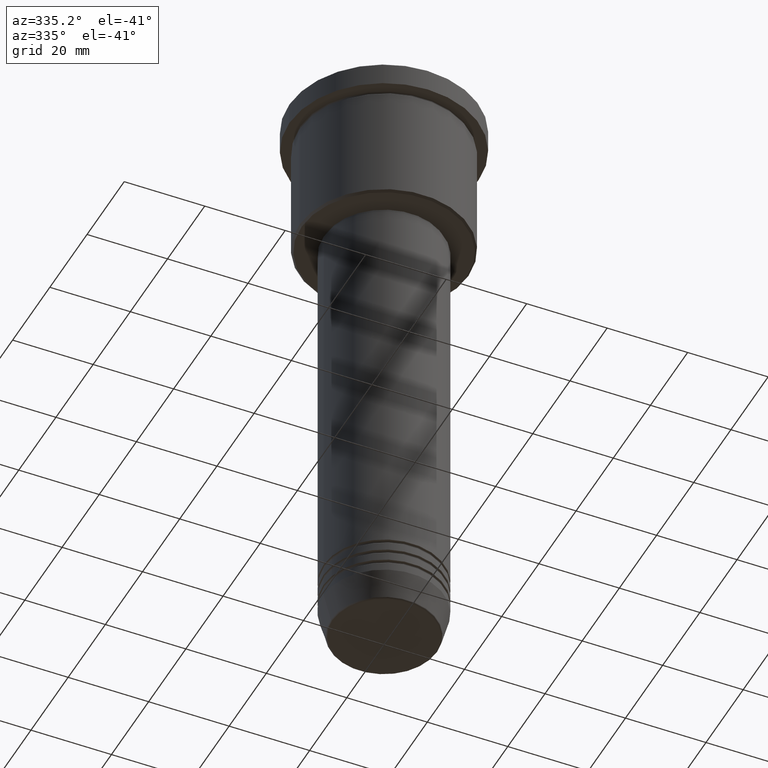
[diagram: clean part render]
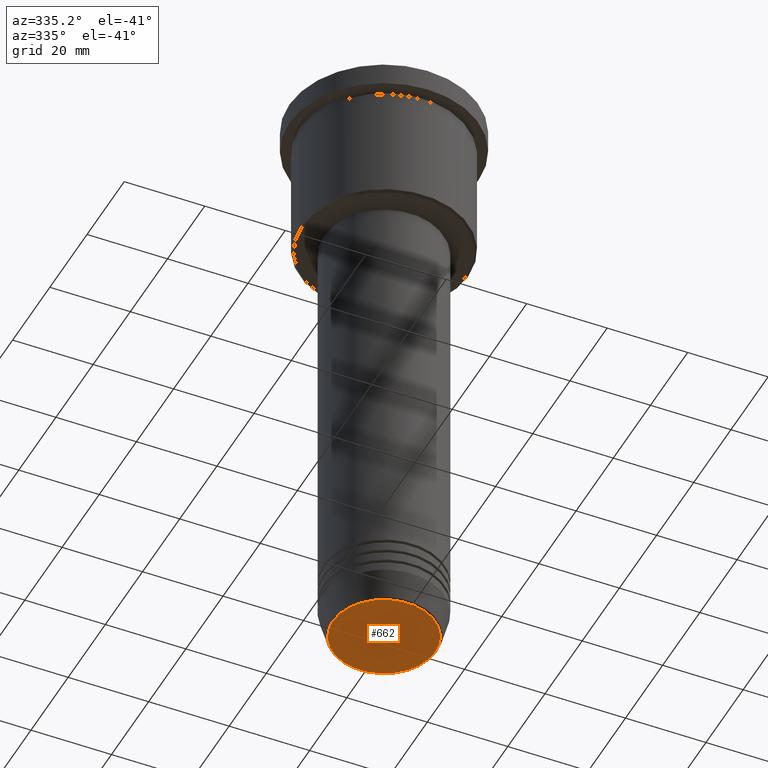
[diagram: same view with one face highlighted and labeled with its STEP entity id]
A machine part, auxiliary view. The second image highlights one B-rep face of the part: STEP entity #662.
In plain terms, the highlighted planar face has unit normal (0, -0, 1).
Its self-contained STEP definition (entity closure, byte-faithful):
#9 = VERTEX_POINT ( 'NONE', #358 ) ;
#106 = CARTESIAN_POINT ( 'NONE',  ( 0.000000000000000000, 0.000000000000000000, -151.0000000000000284 ) ) ;
#233 = EDGE_LOOP ( 'NONE', ( #891, #1128 ) ) ;
#246 = CIRCLE ( 'NONE', #523, 12.74069215899265828 ) ;
#274 = DIRECTION ( 'NONE',  ( 1.000000000000000000, 0.000000000000000000, 0.000000000000000000 ) ) ;
#320 = PLANE ( 'NONE',  #581 ) ;
#358 = CARTESIAN_POINT ( 'NONE',  ( -12.74069215899265828, 1.589857736427681035E-15, -151.0000000000000284 ) ) ;
#433 = CARTESIAN_POINT ( 'NONE',  ( 0.000000000000000000, 0.000000000000000000, -151.0000000000000284 ) ) ;
#436 = DIRECTION ( 'NONE',  ( 0.000000000000000000, -0.000000000000000000, 1.000000000000000000 ) ) ;
#468 = DIRECTION ( 'NONE',  ( 0.000000000000000000, 0.000000000000000000, -1.000000000000000000 ) ) ;
#523 = AXIS2_PLACEMENT_3D ( 'NONE', #106, #468, #274 ) ;
#543 = CIRCLE ( 'NONE', #1181, 12.74069215899265828 ) ;
#553 = CARTESIAN_POINT ( 'NONE',  ( 12.74069215899265828, 0.000000000000000000, -151.0000000000000284 ) ) ;
#571 = EDGE_CURVE ( 'NONE', #887, #9, #543, .T. ) ;
#581 = AXIS2_PLACEMENT_3D ( 'NONE', #433, #436, #981 ) ;
#662 = ADVANCED_FACE ( 'NONE', ( #978 ), #320, .F. ) ;
#681 = DIRECTION ( 'NONE',  ( 1.000000000000000000, 0.000000000000000000, 0.000000000000000000 ) ) ;
#804 = EDGE_CURVE ( 'NONE', #9, #887, #246, .T. ) ;
#887 = VERTEX_POINT ( 'NONE', #553 ) ;
#891 = ORIENTED_EDGE ( 'NONE', *, *, #571, .T. ) ;
#955 = DIRECTION ( 'NONE',  ( 0.000000000000000000, 0.000000000000000000, -1.000000000000000000 ) ) ;
#978 = FACE_OUTER_BOUND ( 'NONE', #233, .T. ) ;
#981 = DIRECTION ( 'NONE',  ( 1.000000000000000000, 0.000000000000000000, 0.000000000000000000 ) ) ;
#1115 = CARTESIAN_POINT ( 'NONE',  ( 0.000000000000000000, 0.000000000000000000, -151.0000000000000284 ) ) ;
#1128 = ORIENTED_EDGE ( 'NONE', *, *, #804, .T. ) ;
#1181 = AXIS2_PLACEMENT_3D ( 'NONE', #1115, #955, #681 ) ;